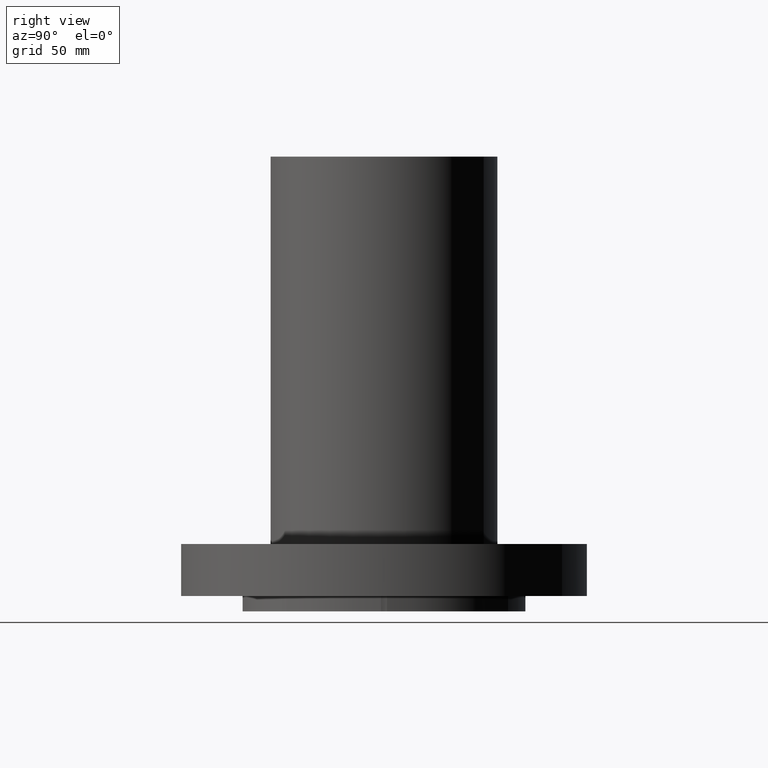
[diagram: clean part render]
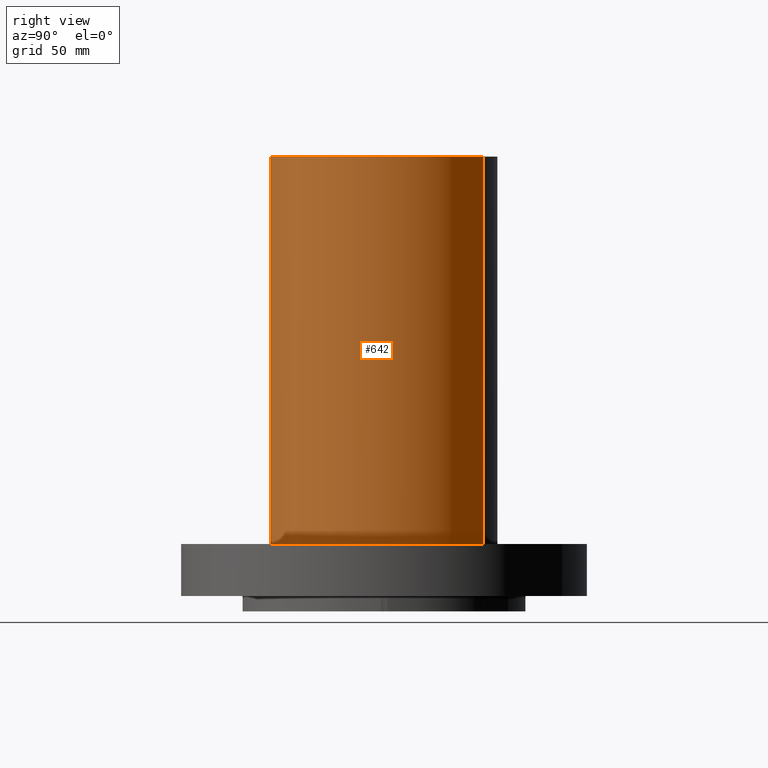
[diagram: same view with one face highlighted and labeled with its STEP entity id]
A machine part, right view. The second image highlights one B-rep face of the part: STEP entity #642.
In plain terms, the highlighted cylindrical surface (partial cylindrical patch) has radius 58.674 mm, axis along (0, 0, -1).
Its self-contained STEP definition (entity closure, byte-faithful):
#606=AXIS2_PLACEMENT_3D('Cylinder Axis2P3D',#603,#604,#605) ;
#610=AXIS2_PLACEMENT_3D('Circle Axis2P3D',#608,#609,$) ;
#626=AXIS2_PLACEMENT_3D('Circle Axis2P3D',#624,#625,$) ;
#603=CARTESIAN_POINT('Axis2P3D Location',(0.,0.,4.31225000002)) ;
#608=CARTESIAN_POINT('Axis2P3D Location',(0.,0.,1.0575)) ;
#612=CARTESIAN_POINT('Vertex',(1.10747299418,2.02721571797,1.0575)) ;
#614=CARTESIAN_POINT('Vertex',(-1.10747299418,-2.02721571797,1.0575)) ;
#617=CARTESIAN_POINT('Line Origine',(1.10747299418,2.02721571797,4.99750000002)) ;
#621=CARTESIAN_POINT('Vertex',(1.10747299418,2.02721571797,8.93750000004)) ;
#624=CARTESIAN_POINT('Axis2P3D Location',(0.,0.,8.93750000004)) ;
#628=CARTESIAN_POINT('Vertex',(-1.10747299418,-2.02721571797,8.93750000004)) ;
#631=CARTESIAN_POINT('Line Origine',(-1.10747299418,-2.02721571797,4.99750000002)) ;
#604=DIRECTION('Axis2P3D Direction',(0.,0.,-0.0393700787402)) ;
#605=DIRECTION('Axis2P3D XDirection',(-0.0188750212049,-0.0345504945626,0.)) ;
#609=DIRECTION('Axis2P3D Direction',(0.,0.,-0.0393700787402)) ;
#618=DIRECTION('Vector Direction',(0.,0.,-0.0393700787402)) ;
#625=DIRECTION('Axis2P3D Direction',(0.,0.,-0.0393700787402)) ;
#632=DIRECTION('Vector Direction',(0.,0.,-0.0393700787402)) ;
#619=VECTOR('Line Direction',#618,0.0393700787402) ;
#633=VECTOR('Line Direction',#632,0.0393700787402) ;
#637=ORIENTED_EDGE('',*,*,#616,.F.) ;
#638=ORIENTED_EDGE('',*,*,#623,.T.) ;
#639=ORIENTED_EDGE('',*,*,#630,.T.) ;
#640=ORIENTED_EDGE('',*,*,#635,.F.) ;
#642=ADVANCED_FACE('PartBody',(#641),#607,.T.) ;
#611=CIRCLE('generated circle',#610,2.31000000001) ;
#627=CIRCLE('generated circle',#626,2.31000000001) ;
#607=CYLINDRICAL_SURFACE('generated cylinder',#606,2.31000000001) ;
#616=EDGE_CURVE('',#613,#615,#611,.T.) ;
#623=EDGE_CURVE('',#613,#622,#620,.F.) ;
#630=EDGE_CURVE('',#622,#629,#627,.T.) ;
#635=EDGE_CURVE('',#615,#629,#634,.F.) ;
#636=EDGE_LOOP('',(#637,#638,#639,#640)) ;
#641=FACE_OUTER_BOUND('',#636,.T.) ;
#620=LINE('Line',#617,#619) ;
#634=LINE('Line',#631,#633) ;
#613=VERTEX_POINT('',#612) ;
#615=VERTEX_POINT('',#614) ;
#622=VERTEX_POINT('',#621) ;
#629=VERTEX_POINT('',#628) ;